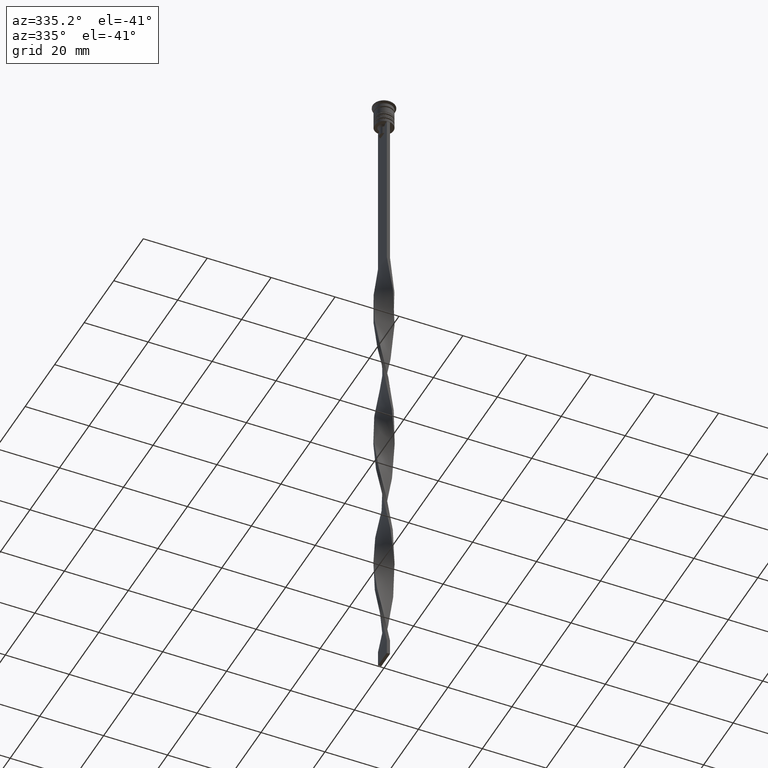
[diagram: clean part render]
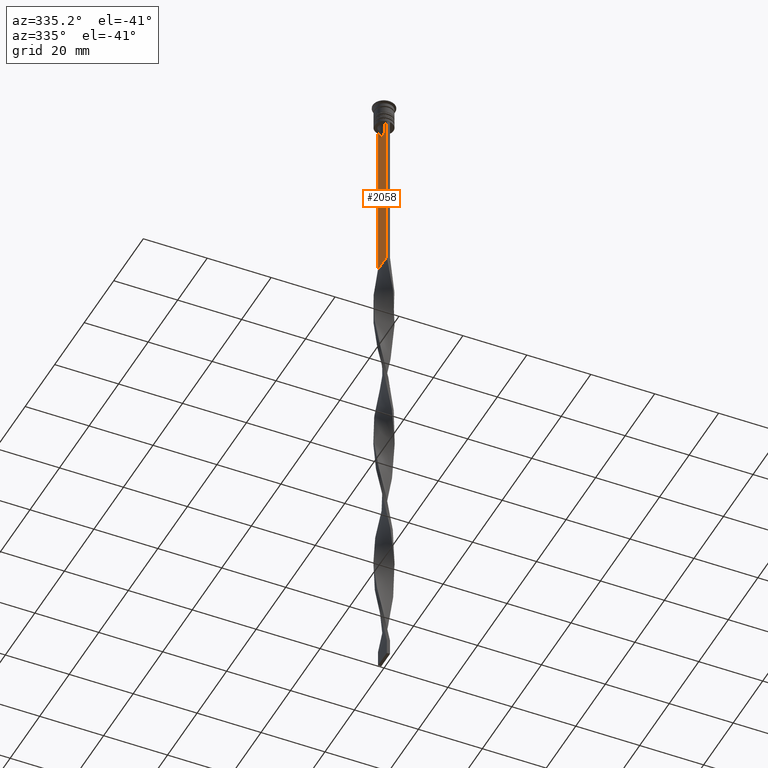
[diagram: same view with one face highlighted and labeled with its STEP entity id]
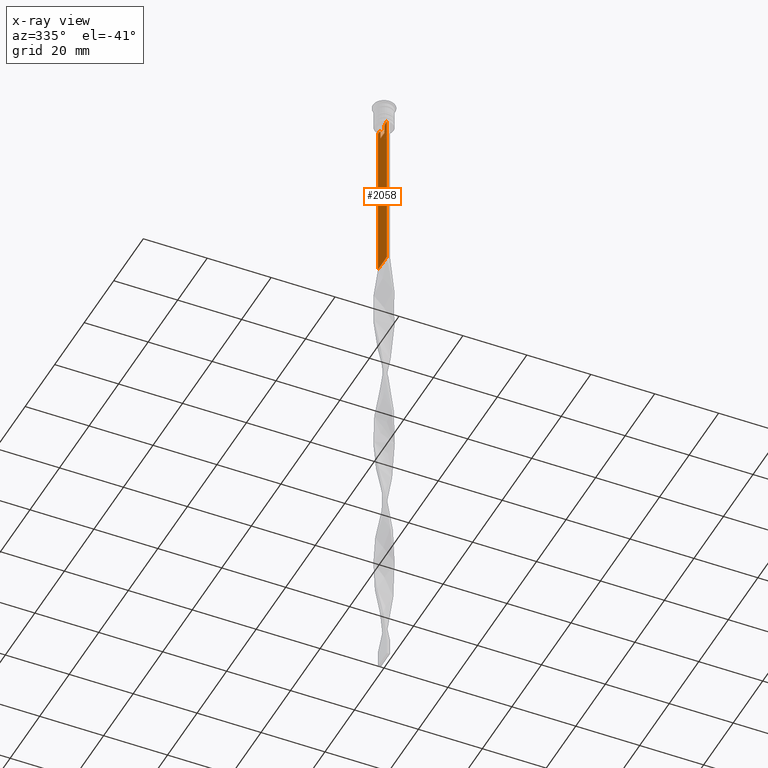
[diagram: x-ray of the same camera — body ghosted, the highlighted face saturated]
A machine part, auxiliary view. The second image highlights one B-rep face of the part: STEP entity #2058.
The next image is the same camera in x-ray: the body ghosted, the highlighted face saturated — about 0% of this face is hidden behind the body in this view.
In plain terms, the highlighted planar face has unit normal (-1, 0, 0).
Its self-contained STEP definition (entity closure, byte-faithful):
#28 = LINE ( 'NONE', #2274, #815 ) ;
#56 = EDGE_CURVE ( 'NONE', #365, #2211, #1051, .T. ) ;
#108 = DIRECTION ( 'NONE',  ( -0.000000000000000000, -0.000000000000000000, 1.000000000000000000 ) ) ;
#110 = VERTEX_POINT ( 'NONE', #971 ) ;
#172 = CARTESIAN_POINT ( 'NONE',  ( -0.5000000000000001110, -3.000000000000000000, -58.50000000000000000 ) ) ;
#197 = EDGE_CURVE ( 'NONE', #2392, #3464, #3368, .T. ) ;
#276 = CARTESIAN_POINT ( 'NONE',  ( -0.5000000000000001110, -3.000000000000000000, -7.500000000000000000 ) ) ;
#278 = CARTESIAN_POINT ( 'NONE',  ( -0.5000000000000001110, -3.000000000000000000, -7.500000000000000000 ) ) ;
#365 = VERTEX_POINT ( 'NONE', #1655 ) ;
#380 = CARTESIAN_POINT ( 'NONE',  ( -0.5000000000000001110, -1.659011726860414093, -7.667884880598472286 ) ) ;
#433 = CARTESIAN_POINT ( 'NONE',  ( -0.5000000000000001110, -1.307669683062199217, -10.49999999999999822 ) ) ;
#435 = ORIENTED_EDGE ( 'NONE', *, *, #1802, .F. ) ;
#500 = CARTESIAN_POINT ( 'NONE',  ( -0.5000000000000001110, -3.000000000000000000, -7.500000000000000000 ) ) ;
#528 = VECTOR ( 'NONE', #2657, 1000.000000000000000 ) ;
#550 = ORIENTED_EDGE ( 'NONE', *, *, #2579, .F. ) ;
#596 = CARTESIAN_POINT ( 'NONE',  ( -0.5000000000000001110, -1.307669683062199217, -8.000000000000000000 ) ) ;
#631 = VECTOR ( 'NONE', #108, 1000.000000000000000 ) ;
#662 = EDGE_CURVE ( 'NONE', #3688, #2938, #1763, .T. ) ;
#669 = ORIENTED_EDGE ( 'NONE', *, *, #197, .F. ) ;
#722 = DIRECTION ( 'NONE',  ( 0.000000000000000000, 0.000000000000000000, -1.000000000000000000 ) ) ;
#784 = VERTEX_POINT ( 'NONE', #433 ) ;
#815 = VECTOR ( 'NONE', #2871, 1000.000000000000000 ) ;
#816 = CARTESIAN_POINT ( 'NONE',  ( -0.5000000000000001110, -2.856571371417139904, -7.500000000000000000 ) ) ;
#937 = CARTESIAN_POINT ( 'NONE',  ( -0.5000000000000001110, -3.000000000000000000, -1.417237469701779329 ) ) ;
#971 = CARTESIAN_POINT ( 'NONE',  ( -0.5000000000000001110, 2.856571371417139904, -7.500000000000000000 ) ) ;
#973 = CARTESIAN_POINT ( 'NONE',  ( -0.5000000000000001110, 1.307669683062199217, -10.49999999999999822 ) ) ;
#980 = CARTESIAN_POINT ( 'NONE',  ( -0.5000000000000001110, -1.307669683062199217, 0.000000000000000000 ) ) ;
#1020 = DIRECTION ( 'NONE',  ( 0.000000000000000000, -1.000000000000000000, 0.000000000000000000 ) ) ;
#1022 = VECTOR ( 'NONE', #1072, 1000.000000000000000 ) ;
#1051 = B_SPLINE_CURVE_WITH_KNOTS ( 'NONE', 3,
 ( #2246, #1414, #1908, #1947 ),
 .UNSPECIFIED., .F., .F.,
 ( 4, 4 ),
 ( 0.003278537493109840491, 0.004003794023484932504 ),
 .UNSPECIFIED. ) ;
#1072 = DIRECTION ( 'NONE',  ( 0.000000000000000000, 1.000000000000000000, 0.000000000000000000 ) ) ;
#1093 = EDGE_CURVE ( 'NONE', #110, #365, #1939, .T. ) ;
#1146 = ORIENTED_EDGE ( 'NONE', *, *, #1093, .F. ) ;
#1180 = VECTOR ( 'NONE', #1646, 1000.000000000000000 ) ;
#1201 = CARTESIAN_POINT ( 'NONE',  ( -0.5000000000000001110, -3.000000000000000000, -1.417237469701779329 ) ) ;
#1244 = AXIS2_PLACEMENT_3D ( 'NONE', #1201, #3522, #2061 ) ;
#1269 = ORIENTED_EDGE ( 'NONE', *, *, #1780, .F. ) ;
#1325 = CARTESIAN_POINT ( 'NONE',  ( -0.5000000000000001110, -1.833030277982335532, -7.500000000000000000 ) ) ;
#1395 = EDGE_CURVE ( 'NONE', #784, #3688, #2721, .T. ) ;
#1414 = CARTESIAN_POINT ( 'NONE',  ( -0.5000000000000001110, 1.659046061654642523, -7.667851756010361619 ) ) ;
#1468 = CARTESIAN_POINT ( 'NONE',  ( -0.5000000000000001110, -1.307669683062199217, -8.000000000000000000 ) ) ;
#1484 = CARTESIAN_POINT ( 'NONE',  ( -0.5000000000000001110, 1.399999999999997691, -10.49999999999999822 ) ) ;
#1511 = EDGE_CURVE ( 'NONE', #2995, #3464, #2177, .T. ) ;
#1597 = VECTOR ( 'NONE', #3207, 1000.000000000000000 ) ;
#1646 = DIRECTION ( 'NONE',  ( 0.000000000000000000, -1.000000000000000000, 0.000000000000000000 ) ) ;
#1655 = CARTESIAN_POINT ( 'NONE',  ( -0.5000000000000001110, 1.833030277982335532, -7.500000000000000000 ) ) ;
#1682 = EDGE_CURVE ( 'NONE', #1880, #1870, #1877, .T. ) ;
#1763 = B_SPLINE_CURVE_WITH_KNOTS ( 'NONE', 3,
 ( #1468, #3499, #380, #1325 ),
 .UNSPECIFIED., .F., .F.,
 ( 4, 4 ),
 ( 0.007225659348748070081, 0.007950554640278040958 ),
 .UNSPECIFIED. ) ;
#1774 = FACE_OUTER_BOUND ( 'NONE', #3537, .T. ) ;
#1780 = EDGE_CURVE ( 'NONE', #2211, #2772, #28, .T. ) ;
#1802 = EDGE_CURVE ( 'NONE', #2995, #110, #2890, .T. ) ;
#1870 = VERTEX_POINT ( 'NONE', #278 ) ;
#1877 = LINE ( 'NONE', #3036, #2142 ) ;
#1880 = VERTEX_POINT ( 'NONE', #816 ) ;
#1908 = CARTESIAN_POINT ( 'NONE',  ( -0.5000000000000001110, 1.484355510416485391, -7.834966642958598015 ) ) ;
#1914 = LINE ( 'NONE', #3077, #2458 ) ;
#1939 = LINE ( 'NONE', #500, #1180 ) ;
#1947 = CARTESIAN_POINT ( 'NONE',  ( -0.5000000000000001110, 1.307669683062199217, -8.000000000000000000 ) ) ;
#1997 = CARTESIAN_POINT ( 'NONE',  ( -0.5000000000000001110, 3.000000000000000000, -7.500000000000000000 ) ) ;
#2058 = ADVANCED_FACE ( 'NONE', ( #1774 ), #2330, .T. ) ;
#2061 = DIRECTION ( 'NONE',  ( 0.000000000000000000, 0.000000000000000000, 1.000000000000000000 ) ) ;
#2142 = VECTOR ( 'NONE', #3395, 1000.000000000000000 ) ;
#2153 = ORIENTED_EDGE ( 'NONE', *, *, #56, .F. ) ;
#2177 = LINE ( 'NONE', #3340, #3714 ) ;
#2211 = VERTEX_POINT ( 'NONE', #3597 ) ;
#2246 = CARTESIAN_POINT ( 'NONE',  ( -0.5000000000000001110, 1.833030277982335532, -7.500000000000000000 ) ) ;
#2263 = EDGE_CURVE ( 'NONE', #2938, #1880, #1914, .T. ) ;
#2274 = CARTESIAN_POINT ( 'NONE',  ( -0.5000000000000001110, 1.307669683062199217, 0.000000000000000000 ) ) ;
#2324 = ORIENTED_EDGE ( 'NONE', *, *, #662, .F. ) ;
#2330 = PLANE ( 'NONE',  #1244 ) ;
#2392 = VERTEX_POINT ( 'NONE', #3674 ) ;
#2458 = VECTOR ( 'NONE', #1020, 1000.000000000000000 ) ;
#2461 = VECTOR ( 'NONE', #2660, 1000.000000000000000 ) ;
#2474 = CARTESIAN_POINT ( 'NONE',  ( -0.5000000000000001110, 3.000000000000000000, -58.50000000000000000 ) ) ;
#2579 = EDGE_CURVE ( 'NONE', #1870, #2392, #3536, .T. ) ;
#2657 = DIRECTION ( 'NONE',  ( 0.000000000000000000, -1.000000000000000000, 0.000000000000000000 ) ) ;
#2660 = DIRECTION ( 'NONE',  ( 0.000000000000000000, 0.000000000000000000, -1.000000000000000000 ) ) ;
#2670 = ORIENTED_EDGE ( 'NONE', *, *, #1682, .F. ) ;
#2721 = LINE ( 'NONE', #980, #631 ) ;
#2772 = VERTEX_POINT ( 'NONE', #973 ) ;
#2790 = ORIENTED_EDGE ( 'NONE', *, *, #1511, .T. ) ;
#2856 = ORIENTED_EDGE ( 'NONE', *, *, #1395, .F. ) ;
#2871 = DIRECTION ( 'NONE',  ( 0.000000000000000000, 0.000000000000000000, -1.000000000000000000 ) ) ;
#2890 = LINE ( 'NONE', #276, #1597 ) ;
#2930 = LINE ( 'NONE', #1484, #528 ) ;
#2938 = VERTEX_POINT ( 'NONE', #3315 ) ;
#2995 = VERTEX_POINT ( 'NONE', #1997 ) ;
#3036 = CARTESIAN_POINT ( 'NONE',  ( -0.5000000000000001110, -3.000000000000000000, -7.500000000000000000 ) ) ;
#3077 = CARTESIAN_POINT ( 'NONE',  ( -0.5000000000000001110, -3.000000000000000000, -7.500000000000000000 ) ) ;
#3204 = ORIENTED_EDGE ( 'NONE', *, *, #3729, .F. ) ;
#3207 = DIRECTION ( 'NONE',  ( 0.000000000000000000, -1.000000000000000000, 0.000000000000000000 ) ) ;
#3315 = CARTESIAN_POINT ( 'NONE',  ( -0.5000000000000001110, -1.833030277982335532, -7.500000000000000000 ) ) ;
#3340 = CARTESIAN_POINT ( 'NONE',  ( -0.5000000000000001110, 3.000000000000000000, -1.417237469701779329 ) ) ;
#3368 = LINE ( 'NONE', #172, #1022 ) ;
#3395 = DIRECTION ( 'NONE',  ( 0.000000000000000000, -1.000000000000000000, 0.000000000000000000 ) ) ;
#3431 = ORIENTED_EDGE ( 'NONE', *, *, #2263, .F. ) ;
#3464 = VERTEX_POINT ( 'NONE', #2474 ) ;
#3499 = CARTESIAN_POINT ( 'NONE',  ( -0.5000000000000001110, -1.484307477388859153, -7.835011508197190722 ) ) ;
#3522 = DIRECTION ( 'NONE',  ( -1.000000000000000000, 0.000000000000000000, 0.000000000000000000 ) ) ;
#3536 = LINE ( 'NONE', #937, #2461 ) ;
#3537 = EDGE_LOOP ( 'NONE', ( #2153, #1146, #435, #2790, #669, #550, #2670, #3431, #2324, #2856, #3204, #1269 ) ) ;
#3597 = CARTESIAN_POINT ( 'NONE',  ( -0.5000000000000001110, 1.307669683062199217, -8.000000000000000000 ) ) ;
#3674 = CARTESIAN_POINT ( 'NONE',  ( -0.5000000000000001110, -3.000000000000000000, -58.50000000000000000 ) ) ;
#3688 = VERTEX_POINT ( 'NONE', #596 ) ;
#3714 = VECTOR ( 'NONE', #722, 1000.000000000000000 ) ;
#3729 = EDGE_CURVE ( 'NONE', #2772, #784, #2930, .T. ) ;